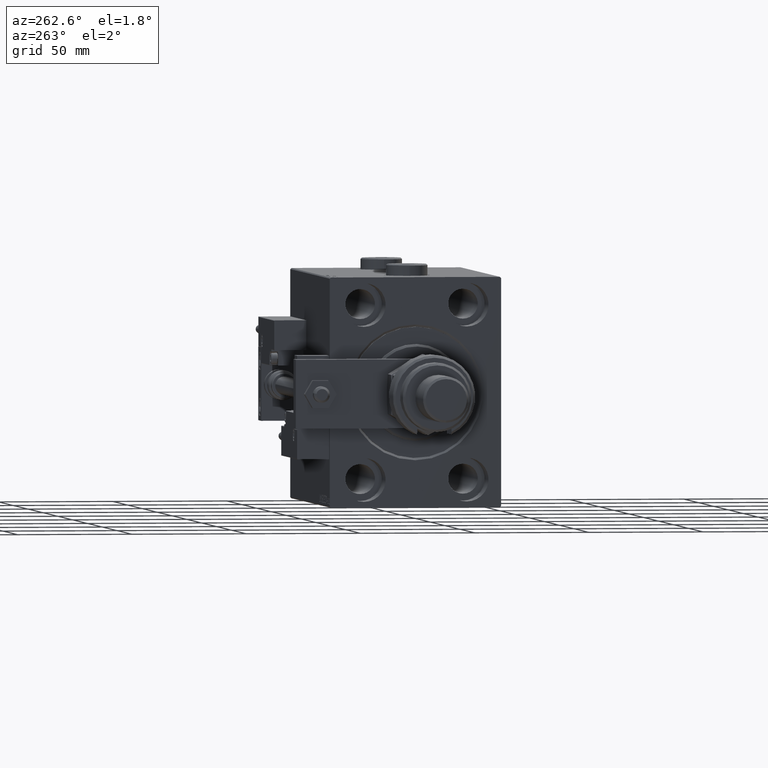
[diagram: clean part render]
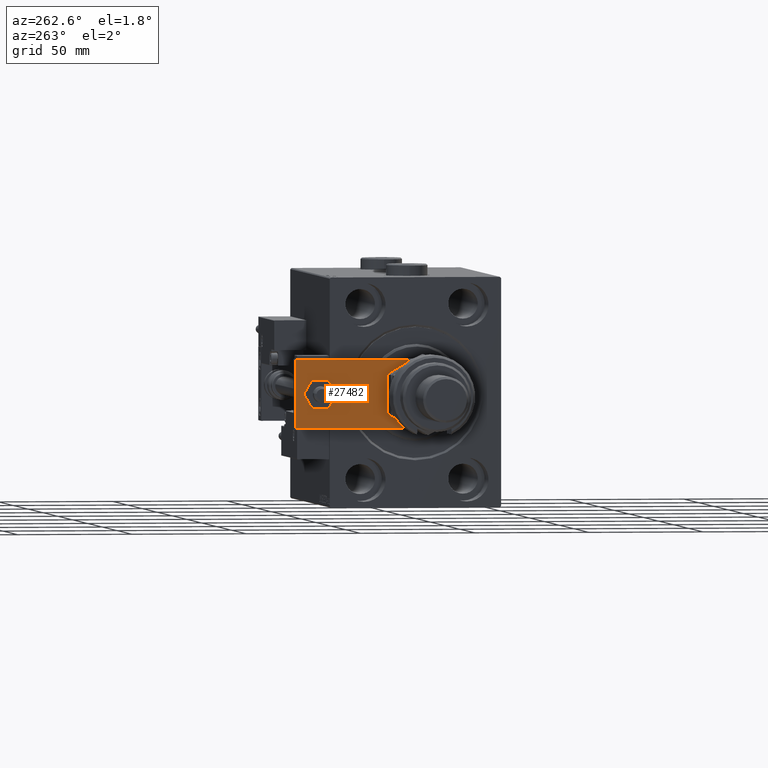
[diagram: same view with one face highlighted and labeled with its STEP entity id]
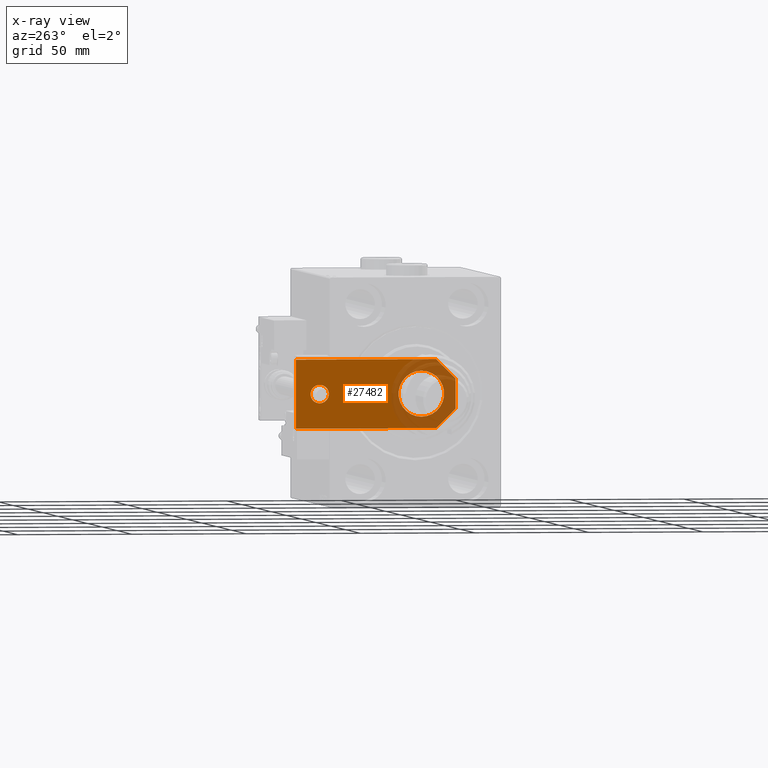
[diagram: x-ray of the same camera — body ghosted, the highlighted face saturated]
A machine part, auxiliary view. The second image highlights one B-rep face of the part: STEP entity #27482.
The next image is the same camera in x-ray: the body ghosted, the highlighted face saturated — about 23% of this face is hidden behind the body in this view.
In plain terms, the highlighted planar face has unit normal (-1, 0, 0).
Its self-contained STEP definition (entity closure, byte-faithful):
#357 = LINE ( 'NONE', #35084, #46113 ) ;
#545 = VERTEX_POINT ( 'NONE', #7081 ) ;
#1368 = VERTEX_POINT ( 'NONE', #50940 ) ;
#1645 = DIRECTION ( 'NONE',  ( 0.000000000000000000, 0.000000000000000000, 1.000000000000000000 ) ) ;
#3460 = DIRECTION ( 'NONE',  ( -0.000000000000000000, 0.000000000000000000, 1.000000000000000000 ) ) ;
#3522 = EDGE_CURVE ( 'NONE', #15765, #43268, #31454, .T. ) ;
#4345 = VERTEX_POINT ( 'NONE', #16347 ) ;
#5322 = CARTESIAN_POINT ( 'NONE',  ( 4.000000000000000888, 59.50000000000001421, 8.000000000000000000 ) ) ;
#6095 = EDGE_CURVE ( 'NONE', #4345, #16550, #357, .T. ) ;
#6371 = CARTESIAN_POINT ( 'NONE',  ( -9.629649721936179265E-32, 15.00000000000001066, 8.000000000000000000 ) ) ;
#7081 = CARTESIAN_POINT ( 'NONE',  ( -14.99999999999999822, 70.00000000000000000, 8.000000000000000000 ) ) ;
#7317 = PLANE ( 'NONE',  #49408 ) ;
#7347 = VERTEX_POINT ( 'NONE', #33334 ) ;
#9393 = DIRECTION ( 'NONE',  ( 1.000000000000000000, 0.000000000000000000, 0.000000000000000000 ) ) ;
#10174 = AXIS2_PLACEMENT_3D ( 'NONE', #22064, #51531, #9393 ) ;
#10491 = EDGE_LOOP ( 'NONE', ( #12071, #20143, #23557, #35868, #28500, #25699 ) ) ;
#10510 = DIRECTION ( 'NONE',  ( 0.7071067811865467956, -0.7071067811865483499, 0.000000000000000000 ) ) ;
#10843 = DIRECTION ( 'NONE',  ( 1.000000000000000000, 0.000000000000000000, 0.000000000000000000 ) ) ;
#12044 = EDGE_CURVE ( 'NONE', #51053, #25338, #36560, .T. ) ;
#12071 = ORIENTED_EDGE ( 'NONE', *, *, #15017, .T. ) ;
#12217 = VECTOR ( 'NONE', #50369, 1000.000000000000000 ) ;
#12781 = ORIENTED_EDGE ( 'NONE', *, *, #36710, .F. ) ;
#15017 = EDGE_CURVE ( 'NONE', #545, #15765, #15948, .T. ) ;
#15079 = EDGE_CURVE ( 'NONE', #16550, #545, #41302, .T. ) ;
#15161 = VECTOR ( 'NONE', #26100, 1000.000000000000000 ) ;
#15765 = VERTEX_POINT ( 'NONE', #24371 ) ;
#15948 = LINE ( 'NONE', #53681, #12217 ) ;
#16347 = CARTESIAN_POINT ( 'NONE',  ( 15.00000000000000355, 8.500000000000007105, 8.000000000000000000 ) ) ;
#16550 = VERTEX_POINT ( 'NONE', #37948 ) ;
#18457 = DIRECTION ( 'NONE',  ( 1.000000000000000000, 0.000000000000000000, 0.000000000000000000 ) ) ;
#19312 = LINE ( 'NONE', #36101, #42646 ) ;
#20020 = FACE_OUTER_BOUND ( 'NONE', #10491, .T. ) ;
#20143 = ORIENTED_EDGE ( 'NONE', *, *, #3522, .T. ) ;
#22064 = CARTESIAN_POINT ( 'NONE',  ( -1.432611055310774642E-16, 59.50000000000001421, 8.000000000000000000 ) ) ;
#23557 = ORIENTED_EDGE ( 'NONE', *, *, #28732, .T. ) ;
#24371 = CARTESIAN_POINT ( 'NONE',  ( -15.00000000000000355, 8.500000000000028422, 8.000000000000000000 ) ) ;
#24391 = EDGE_CURVE ( 'NONE', #25338, #51053, #50125, .T. ) ;
#25338 = VERTEX_POINT ( 'NONE', #40056 ) ;
#25555 = LINE ( 'NONE', #38784, #15161 ) ;
#25699 = ORIENTED_EDGE ( 'NONE', *, *, #15079, .T. ) ;
#26100 = DIRECTION ( 'NONE',  ( 1.000000000000000000, 0.000000000000000000, 0.000000000000000000 ) ) ;
#26125 = ORIENTED_EDGE ( 'NONE', *, *, #38074, .F. ) ;
#26361 = AXIS2_PLACEMENT_3D ( 'NONE', #36180, #30961, #10843 ) ;
#27482 = ADVANCED_FACE ( 'NONE', ( #41216, #20020, #48661 ), #7317, .T. ) ;
#28260 = CARTESIAN_POINT ( 'NONE',  ( 0.000000000000000000, 0.000000000000000000, 8.000000000000000000 ) ) ;
#28500 = ORIENTED_EDGE ( 'NONE', *, *, #6095, .T. ) ;
#28701 = CARTESIAN_POINT ( 'NONE',  ( 6.499999999999974243, 0.000000000000000000, 8.000000000000000000 ) ) ;
#28732 = EDGE_CURVE ( 'NONE', #43268, #40680, #25555, .T. ) ;
#30027 = EDGE_LOOP ( 'NONE', ( #26125, #12781 ) ) ;
#30637 = DIRECTION ( 'NONE',  ( 1.000000000000000000, 0.000000000000000000, 0.000000000000000000 ) ) ;
#30961 = DIRECTION ( 'NONE',  ( 0.000000000000000000, 0.000000000000000000, 1.000000000000000000 ) ) ;
#31096 = VECTOR ( 'NONE', #10510, 1000.000000000000000 ) ;
#31454 = LINE ( 'NONE', #48259, #31096 ) ;
#32250 = EDGE_LOOP ( 'NONE', ( #42773, #52541 ) ) ;
#33334 = CARTESIAN_POINT ( 'NONE',  ( 10.00000000000000178, 15.00000000000001243, 8.000000000000000000 ) ) ;
#35048 = DIRECTION ( 'NONE',  ( 0.000000000000000000, 0.000000000000000000, 1.000000000000000000 ) ) ;
#35084 = CARTESIAN_POINT ( 'NONE',  ( 15.00000000000000355, 0.000000000000000000, 8.000000000000000000 ) ) ;
#35868 = ORIENTED_EDGE ( 'NONE', *, *, #50440, .T. ) ;
#36101 = CARTESIAN_POINT ( 'NONE',  ( 3.249999999999979128, -3.249999999999987121, 8.000000000000000000 ) ) ;
#36180 = CARTESIAN_POINT ( 'NONE',  ( -1.432611055310774642E-16, 59.50000000000001421, 8.000000000000000000 ) ) ;
#36431 = CIRCLE ( 'NONE', #54046, 10.00000000000000178 ) ;
#36560 = CIRCLE ( 'NONE', #10174, 4.000000000000000888 ) ;
#36710 = EDGE_CURVE ( 'NONE', #7347, #1368, #36431, .T. ) ;
#37074 = DIRECTION ( 'NONE',  ( 1.000000000000000000, 0.000000000000000000, 0.000000000000000000 ) ) ;
#37948 = CARTESIAN_POINT ( 'NONE',  ( 15.00000000000000000, 70.00000000000000000, 8.000000000000000000 ) ) ;
#38074 = EDGE_CURVE ( 'NONE', #1368, #7347, #53187, .T. ) ;
#38784 = CARTESIAN_POINT ( 'NONE',  ( -15.00000000000000355, 0.000000000000000000, 8.000000000000000000 ) ) ;
#39401 = CARTESIAN_POINT ( 'NONE',  ( -9.629649721936179265E-32, 15.00000000000001066, 8.000000000000000000 ) ) ;
#40056 = CARTESIAN_POINT ( 'NONE',  ( -4.000000000000000888, 59.50000000000001421, 8.000000000000000000 ) ) ;
#40680 = VERTEX_POINT ( 'NONE', #28701 ) ;
#41216 = FACE_BOUND ( 'NONE', #32250, .T. ) ;
#41302 = LINE ( 'NONE', #45698, #48182 ) ;
#42378 = DIRECTION ( 'NONE',  ( -1.000000000000000000, 0.000000000000000000, 0.000000000000000000 ) ) ;
#42646 = VECTOR ( 'NONE', #52894, 1000.000000000000114 ) ;
#42773 = ORIENTED_EDGE ( 'NONE', *, *, #24391, .F. ) ;
#43268 = VERTEX_POINT ( 'NONE', #51733 ) ;
#45698 = CARTESIAN_POINT ( 'NONE',  ( 15.00000000000000000, 70.00000000000000000, 8.000000000000000000 ) ) ;
#46113 = VECTOR ( 'NONE', #47205, 1000.000000000000000 ) ;
#47205 = DIRECTION ( 'NONE',  ( -4.956352788505162775E-17, 1.000000000000000000, 0.000000000000000000 ) ) ;
#48182 = VECTOR ( 'NONE', #42378, 1000.000000000000000 ) ;
#48259 = CARTESIAN_POINT ( 'NONE',  ( -3.250000000000003553, -3.249999999999996891, 8.000000000000000000 ) ) ;
#48661 = FACE_BOUND ( 'NONE', #30027, .T. ) ;
#49408 = AXIS2_PLACEMENT_3D ( 'NONE', #28260, #3460, #37074 ) ;
#49685 = AXIS2_PLACEMENT_3D ( 'NONE', #6371, #35048, #30637 ) ;
#50125 = CIRCLE ( 'NONE', #26361, 4.000000000000000888 ) ;
#50369 = DIRECTION ( 'NONE',  ( -7.434529182757744162E-17, -1.000000000000000000, 0.000000000000000000 ) ) ;
#50440 = EDGE_CURVE ( 'NONE', #40680, #4345, #19312, .T. ) ;
#50940 = CARTESIAN_POINT ( 'NONE',  ( -10.00000000000000178, 15.00000000000001066, 8.000000000000000000 ) ) ;
#51053 = VERTEX_POINT ( 'NONE', #5322 ) ;
#51531 = DIRECTION ( 'NONE',  ( 0.000000000000000000, 0.000000000000000000, 1.000000000000000000 ) ) ;
#51733 = CARTESIAN_POINT ( 'NONE',  ( -6.499999999999993783, 0.000000000000000000, 8.000000000000000000 ) ) ;
#52541 = ORIENTED_EDGE ( 'NONE', *, *, #12044, .F. ) ;
#52894 = DIRECTION ( 'NONE',  ( 0.7071067811865483499, 0.7071067811865465735, -0.000000000000000000 ) ) ;
#53187 = CIRCLE ( 'NONE', #49685, 10.00000000000000178 ) ;
#53681 = CARTESIAN_POINT ( 'NONE',  ( -14.99999999999999822, 70.00000000000000000, 8.000000000000000000 ) ) ;
#54046 = AXIS2_PLACEMENT_3D ( 'NONE', #39401, #1645, #18457 ) ;